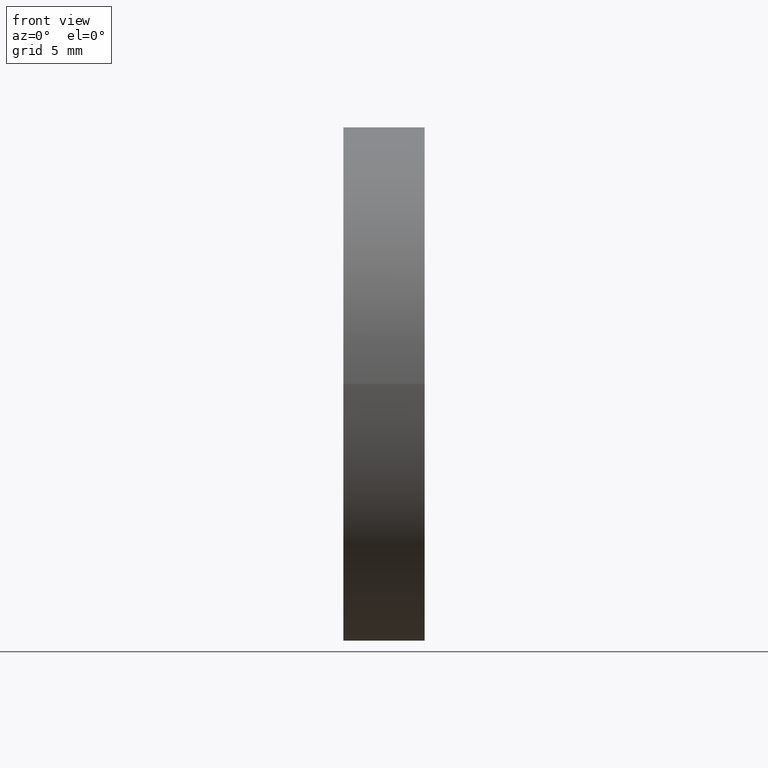
[diagram: clean part render]
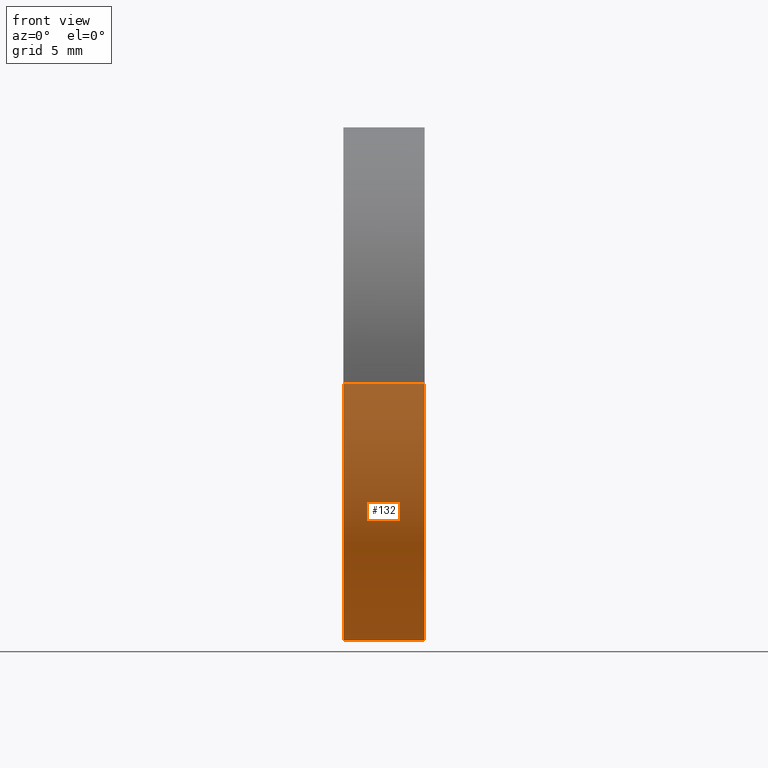
[diagram: same view with one face highlighted and labeled with its STEP entity id]
A machine part, front view. The second image highlights one B-rep face of the part: STEP entity #132.
In plain terms, the highlighted cylindrical surface (partial cylindrical patch) has radius 15 mm, axis along (1, 0, -0).
Its self-contained STEP definition (entity closure, byte-faithful):
#1 = DIRECTION ( 'NONE',  ( -1.224646799147353207E-16, 1.000000000000000000, 0.000000000000000000 ) ) ;
#5 = EDGE_CURVE ( 'NONE', #157, #108, #38, .T. ) ;
#8 = VERTEX_POINT ( 'NONE', #63 ) ;
#12 = CARTESIAN_POINT ( 'NONE',  ( -4.729999999999999538, 15.00000000000000178, 0.000000000000000000 ) ) ;
#14 = FACE_OUTER_BOUND ( 'NONE', #169, .T. ) ;
#24 = EDGE_CURVE ( 'NONE', #108, #8, #43, .T. ) ;
#25 = VECTOR ( 'NONE', #41, 1000.000000000000000 ) ;
#26 = LINE ( 'NONE', #59, #130 ) ;
#33 = CARTESIAN_POINT ( 'NONE',  ( 2.763896918518806728E-15, -15.00000000000000000, 1.836970198721029589E-15 ) ) ;
#35 = DIRECTION ( 'NONE',  ( -1.224646799147353207E-16, 1.000000000000000000, 0.000000000000000000 ) ) ;
#38 = CIRCLE ( 'NONE', #149, 15.00000000000000000 ) ;
#41 = DIRECTION ( 'NONE',  ( 1.000000000000000000, 1.224646799147353454E-16, -0.000000000000000000 ) ) ;
#42 = CARTESIAN_POINT ( 'NONE',  ( -4.729999999999999538, -5.792579359966981895E-16, 0.000000000000000000 ) ) ;
#43 = LINE ( 'NONE', #91, #25 ) ;
#44 = EDGE_CURVE ( 'NONE', #157, #195, #26, .T. ) ;
#50 = CARTESIAN_POINT ( 'NONE',  ( 0.000000000000000000, 0.000000000000000000, 0.000000000000000000 ) ) ;
#58 = AXIS2_PLACEMENT_3D ( 'NONE', #188, #127, #35 ) ;
#59 = CARTESIAN_POINT ( 'NONE',  ( 1.836970198721029983E-15, -15.00000000000000000, 1.836970198721029589E-15 ) ) ;
#63 = CARTESIAN_POINT ( 'NONE',  ( -9.100434789232534355E-16, 15.00000000000000000, 0.000000000000000000 ) ) ;
#72 = CIRCLE ( 'NONE', #58, 15.00000000000000000 ) ;
#76 = DIRECTION ( 'NONE',  ( -1.156482317317871478E-16, 1.000000000000000000, 0.000000000000000000 ) ) ;
#91 = CARTESIAN_POINT ( 'NONE',  ( -1.836970198721029983E-15, 15.00000000000000000, 0.000000000000000000 ) ) ;
#108 = VERTEX_POINT ( 'NONE', #12 ) ;
#109 = ORIENTED_EDGE ( 'NONE', *, *, #24, .T. ) ;
#112 = DIRECTION ( 'NONE',  ( 1.000000000000000000, 1.224646799147353454E-16, -0.000000000000000000 ) ) ;
#123 = DIRECTION ( 'NONE',  ( 1.000000000000000000, 1.224646799147353454E-16, -0.000000000000000000 ) ) ;
#127 = DIRECTION ( 'NONE',  ( 1.000000000000000000, 1.224646799147353454E-16, -0.000000000000000000 ) ) ;
#130 = VECTOR ( 'NONE', #123, 1000.000000000000000 ) ;
#132 = ADVANCED_FACE ( 'NONE', ( #14 ), #158, .T. ) ;
#145 = CARTESIAN_POINT ( 'NONE',  ( -4.729999999999997762, -15.00000000000000178, 1.836970198721029983E-15 ) ) ;
#147 = AXIS2_PLACEMENT_3D ( 'NONE', #50, #112, #1 ) ;
#149 = AXIS2_PLACEMENT_3D ( 'NONE', #42, #184, #76 ) ;
#151 = ORIENTED_EDGE ( 'NONE', *, *, #5, .T. ) ;
#154 = ORIENTED_EDGE ( 'NONE', *, *, #179, .F. ) ;
#157 = VERTEX_POINT ( 'NONE', #145 ) ;
#158 = CYLINDRICAL_SURFACE ( 'NONE', #147, 15.00000000000000000 ) ;
#168 = ORIENTED_EDGE ( 'NONE', *, *, #44, .F. ) ;
#169 = EDGE_LOOP ( 'NONE', ( #168, #151, #109, #154 ) ) ;
#179 = EDGE_CURVE ( 'NONE', #195, #8, #72, .T. ) ;
#184 = DIRECTION ( 'NONE',  ( 1.000000000000000000, 1.224646799147353454E-16, -0.000000000000000000 ) ) ;
#188 = CARTESIAN_POINT ( 'NONE',  ( 9.269267197977765478E-16, 1.135157840444502874E-31, 0.000000000000000000 ) ) ;
#195 = VERTEX_POINT ( 'NONE', #33 ) ;